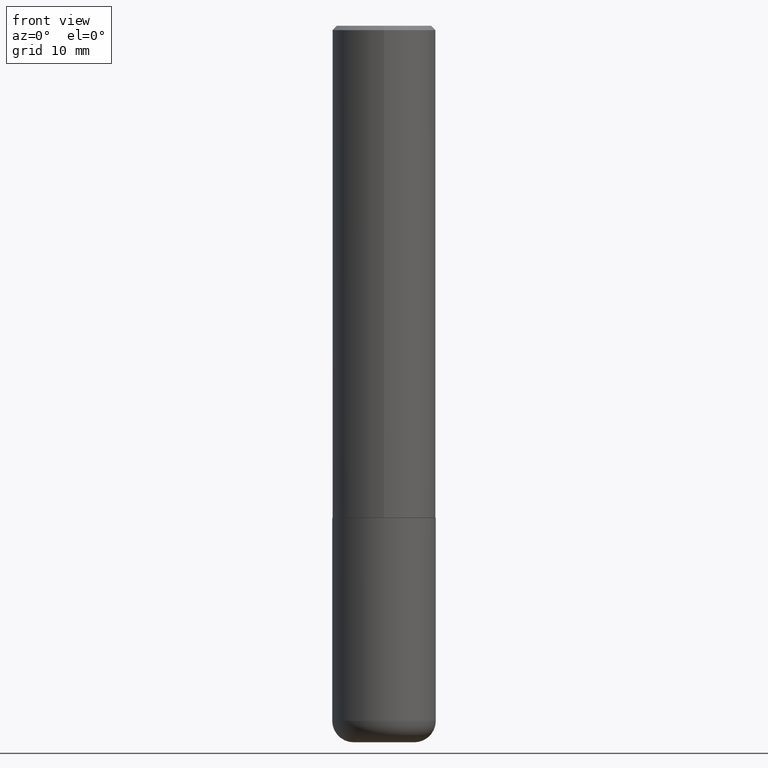
[diagram: clean part render]
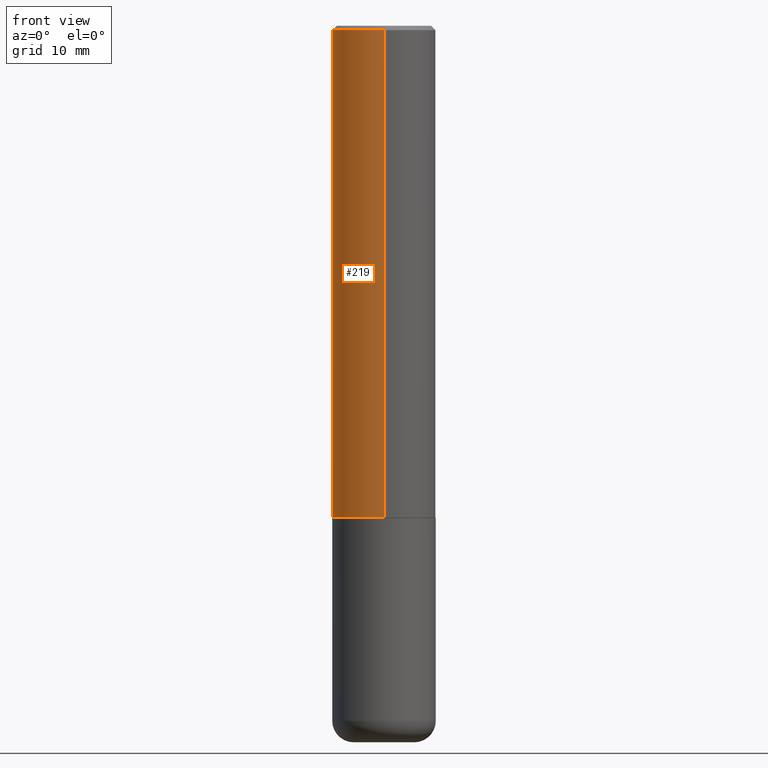
[diagram: same view with one face highlighted and labeled with its STEP entity id]
A machine part, front view. The second image highlights one B-rep face of the part: STEP entity #219.
In plain terms, the highlighted cylindrical surface (partial cylindrical patch) has radius 5.9995 mm, axis along (-0, 0, 1).
Its self-contained STEP definition (entity closure, byte-faithful):
#21 = DIRECTION ( 'NONE',  ( -6.982962677686265922E-15, -1.000000000000000000, 3.494732472144603410E-15 ) ) ;
#57 = DIRECTION ( 'NONE',  ( -6.982962677686265922E-15, -1.000000000000000000, 3.469747663417773058E-15 ) ) ;
#69 = CARTESIAN_POINT ( 'NONE',  ( 4.886397103869442398E-31, -6.989464944289237832E-17, -0.02000000000000009062 ) ) ;
#87 = CARTESIAN_POINT ( 'NONE',  ( -1.620449627073635079E-15, -0.2362000000000000766, -0.01999999999999926489 ) ) ;
#90 = CIRCLE ( 'NONE', #139, 0.2361999999999999933 ) ;
#109 = AXIS2_PLACEMENT_3D ( 'NONE', #145, #152, #21 ) ;
#130 = DIRECTION ( 'NONE',  ( -2.443198551934710321E-29, 3.494732472144603410E-15, 1.000000000000000000 ) ) ;
#132 = EDGE_CURVE ( 'NONE', #170, #261, #330, .T. ) ;
#139 = AXIS2_PLACEMENT_3D ( 'NONE', #69, #130, #341 ) ;
#145 = CARTESIAN_POINT ( 'NONE',  ( 0.000000000000000000, 0.000000000000000000, 0.000000000000000000 ) ) ;
#150 = CARTESIAN_POINT ( 'NONE',  ( 1.678301941865385582E-15, 0.2361999999999924160, -2.243100000000000982 ) ) ;
#152 = DIRECTION ( 'NONE',  ( -2.443198551934710321E-29, 3.494732472144603410E-15, 1.000000000000000000 ) ) ;
#162 = VECTOR ( 'NONE', #268, 39.37007874015748143 ) ;
#170 = VERTEX_POINT ( 'NONE', #150 ) ;
#175 = CARTESIAN_POINT ( 'NONE',  ( 5.480338671844748839E-29, -7.839034408267561952E-15, -2.243100000000000094 ) ) ;
#191 = CARTESIAN_POINT ( 'NONE',  ( -1.649375784469443080E-15, -0.2362000000000081257, -2.243099999999999206 ) ) ;
#206 = ORIENTED_EDGE ( 'NONE', *, *, #319, .F. ) ;
#217 = CYLINDRICAL_SURFACE ( 'NONE', #109, 0.2362000000000001321 ) ;
#218 = CARTESIAN_POINT ( 'NONE',  ( 1.649375784469496525E-15, 0.2361999999999999378, -0.02000000000000091288 ) ) ;
#219 = ADVANCED_FACE ( 'NONE', ( #293 ), #217, .T. ) ;
#233 = VERTEX_POINT ( 'NONE', #87 ) ;
#244 = ORIENTED_EDGE ( 'NONE', *, *, #246, .F. ) ;
#246 = EDGE_CURVE ( 'NONE', #170, #282, #248, .T. ) ;
#248 = LINE ( 'NONE', #271, #162 ) ;
#251 = EDGE_CURVE ( 'NONE', #261, #233, #407, .T. ) ;
#261 = VERTEX_POINT ( 'NONE', #191 ) ;
#268 = DIRECTION ( 'NONE',  ( -2.443198551934710321E-29, 3.494732472144603016E-15, 1.000000000000000000 ) ) ;
#271 = CARTESIAN_POINT ( 'NONE',  ( 1.678301941865357380E-15, 0.2362000000000001321, -8.254558099205557624E-16 ) ) ;
#282 = VERTEX_POINT ( 'NONE', #218 ) ;
#285 = ORIENTED_EDGE ( 'NONE', *, *, #132, .T. ) ;
#293 = FACE_OUTER_BOUND ( 'NONE', #364, .T. ) ;
#294 = VECTOR ( 'NONE', #305, 39.37007874015748143 ) ;
#295 = ORIENTED_EDGE ( 'NONE', *, *, #251, .T. ) ;
#296 = DIRECTION ( 'NONE',  ( -2.443198551934710321E-29, 3.494732472144603410E-15, 1.000000000000000000 ) ) ;
#305 = DIRECTION ( 'NONE',  ( -2.443198551934710321E-29, 3.494732472144603016E-15, 1.000000000000000000 ) ) ;
#311 = CARTESIAN_POINT ( 'NONE',  ( -1.649375784469496920E-15, -0.2362000000000001321, 8.254558099205557624E-16 ) ) ;
#319 = EDGE_CURVE ( 'NONE', #282, #233, #90, .T. ) ;
#330 = CIRCLE ( 'NONE', #403, 0.2362000000000002709 ) ;
#341 = DIRECTION ( 'NONE',  ( -6.982962677686265922E-15, -1.000000000000000000, 3.487819265831411744E-15 ) ) ;
#364 = EDGE_LOOP ( 'NONE', ( #244, #285, #295, #206 ) ) ;
#403 = AXIS2_PLACEMENT_3D ( 'NONE', #175, #296, #57 ) ;
#407 = LINE ( 'NONE', #311, #294 ) ;